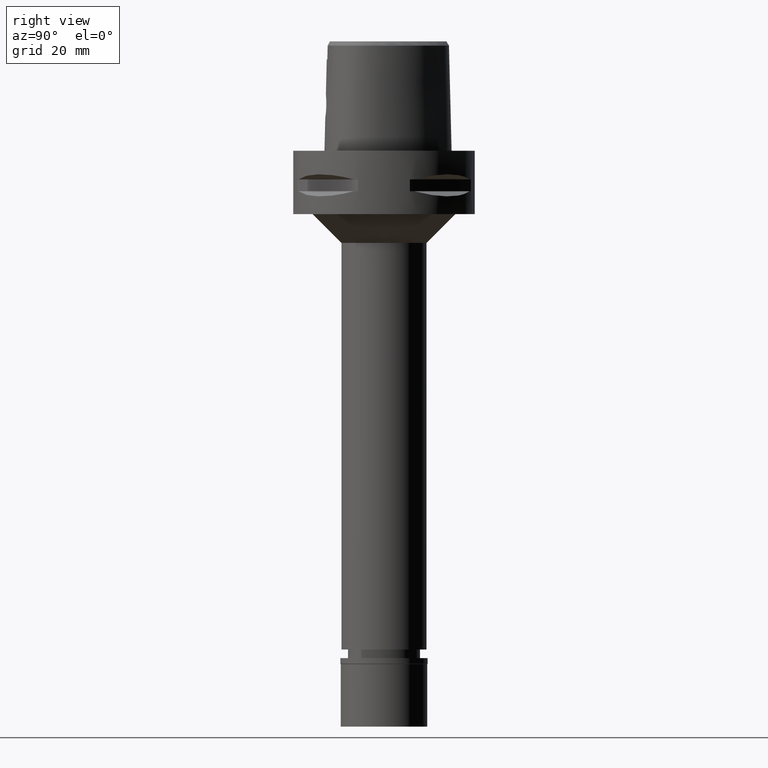
[diagram: clean part render]
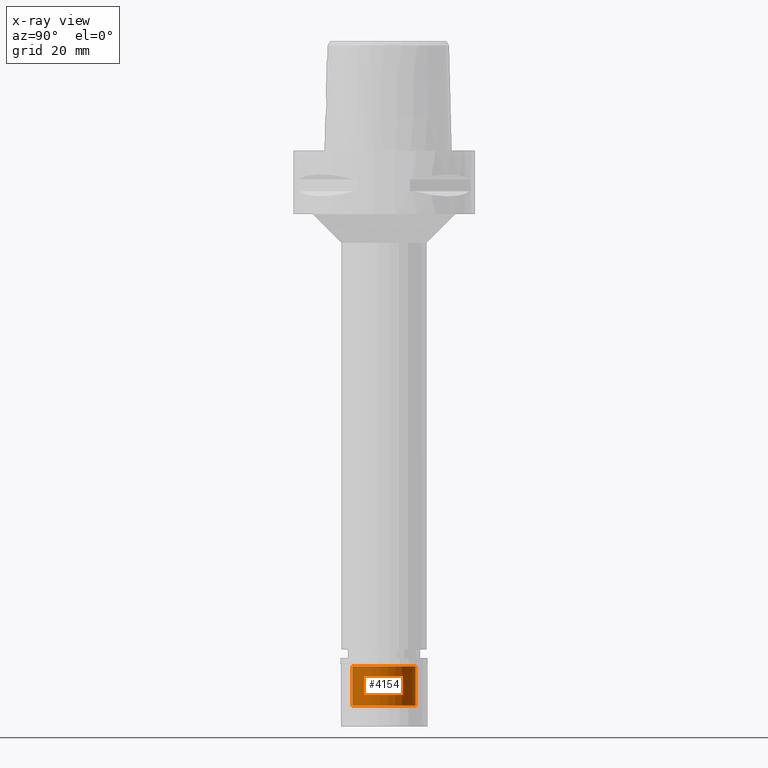
[diagram: x-ray — body ghosted, one internal face saturated and labeled with its STEP entity id]
A machine part, right view, then the same camera in x-ray: the body is ghosted and one INTERNAL B-rep face — a face not visible from any outside direction — is saturated and labeled: STEP entity #4154.
In plain terms, the highlighted cylindrical surface (edge-blend (fillet) strip) has radius 11 mm, axis along (0, 0, -1).
Its self-contained STEP definition (entity closure, byte-faithful):
#62 = DIRECTION ( 'NONE',  ( 0.0000000000000000000, 0.0000000000000000000, -1.000000000000000000 ) ) ;
#270 = CARTESIAN_POINT ( 'NONE',  ( 0.0000000000000000000, -11.00000000000000000, -16.50000000000000000 ) ) ;
#371 = EDGE_LOOP ( 'NONE', ( #3478, #777, #2441, #2598 ) ) ;
#407 = CIRCLE ( 'NONE', #2302, 11.00000000000000000 ) ;
#442 = CARTESIAN_POINT ( 'NONE',  ( 0.0000000000000000000, 0.0000000000000000000, -16.50000000000000000 ) ) ;
#490 = CARTESIAN_POINT ( 'NONE',  ( 0.0000000000000000000, 11.00000000000000000, -16.50000000000000000 ) ) ;
#525 = EDGE_CURVE ( 'NONE', #4177, #1474, #1029, .T. ) ;
#718 = DIRECTION ( 'NONE',  ( 0.0000000000000000000, 0.0000000000000000000, -1.000000000000000000 ) ) ;
#777 = ORIENTED_EDGE ( 'NONE', *, *, #3321, .T. ) ;
#1029 = CIRCLE ( 'NONE', #3785, 11.00000000000000000 ) ;
#1074 = DIRECTION ( 'NONE',  ( 0.0000000000000000000, 1.000000000000000000, 0.0000000000000000000 ) ) ;
#1333 = LINE ( 'NONE', #270, #4522 ) ;
#1474 = VERTEX_POINT ( 'NONE', #4493 ) ;
#1753 = CARTESIAN_POINT ( 'NONE',  ( 0.0000000000000000000, -11.00000000000000000, -2.899999999999999911 ) ) ;
#1755 = VECTOR ( 'NONE', #3955, 1000.000000000000000 ) ;
#1773 = DIRECTION ( 'NONE',  ( 0.0000000000000000000, 0.0000000000000000000, 1.000000000000000000 ) ) ;
#1914 = AXIS2_PLACEMENT_3D ( 'NONE', #4484, #718, #4460 ) ;
#2299 = VERTEX_POINT ( 'NONE', #2876 ) ;
#2302 = AXIS2_PLACEMENT_3D ( 'NONE', #442, #62, #1074 ) ;
#2440 = EDGE_CURVE ( 'NONE', #3320, #2299, #407, .T. ) ;
#2441 = ORIENTED_EDGE ( 'NONE', *, *, #525, .T. ) ;
#2598 = ORIENTED_EDGE ( 'NONE', *, *, #4674, .F. ) ;
#2704 = CARTESIAN_POINT ( 'NONE',  ( 0.0000000000000000000, 0.0000000000000000000, -2.899999999999999911 ) ) ;
#2876 = CARTESIAN_POINT ( 'NONE',  ( 0.0000000000000000000, -11.00000000000000000, -16.50000000000000000 ) ) ;
#2956 = CYLINDRICAL_SURFACE ( 'NONE', #1914, 11.00000000000000000 ) ;
#3320 = VERTEX_POINT ( 'NONE', #4727 ) ;
#3321 = EDGE_CURVE ( 'NONE', #2299, #4177, #1333, .T. ) ;
#3478 = ORIENTED_EDGE ( 'NONE', *, *, #2440, .T. ) ;
#3785 = AXIS2_PLACEMENT_3D ( 'NONE', #2704, #4655, #4208 ) ;
#3955 = DIRECTION ( 'NONE',  ( 0.0000000000000000000, 0.0000000000000000000, 1.000000000000000000 ) ) ;
#4090 = FACE_OUTER_BOUND ( 'NONE', #371, .T. ) ;
#4154 = ADVANCED_FACE ( 'NONE', ( #4090 ), #2956, .F. ) ;
#4177 = VERTEX_POINT ( 'NONE', #1753 ) ;
#4208 = DIRECTION ( 'NONE',  ( 0.0000000000000000000, -1.000000000000000000, 0.0000000000000000000 ) ) ;
#4460 = DIRECTION ( 'NONE',  ( 0.0000000000000000000, -1.000000000000000000, 0.0000000000000000000 ) ) ;
#4484 = CARTESIAN_POINT ( 'NONE',  ( 0.0000000000000000000, 0.0000000000000000000, 0.0000000000000000000 ) ) ;
#4493 = CARTESIAN_POINT ( 'NONE',  ( 0.0000000000000000000, 11.00000000000000000, -2.899999999999999911 ) ) ;
#4522 = VECTOR ( 'NONE', #1773, 1000.000000000000000 ) ;
#4655 = DIRECTION ( 'NONE',  ( 0.0000000000000000000, 0.0000000000000000000, 1.000000000000000000 ) ) ;
#4656 = LINE ( 'NONE', #490, #1755 ) ;
#4674 = EDGE_CURVE ( 'NONE', #3320, #1474, #4656, .T. ) ;
#4727 = CARTESIAN_POINT ( 'NONE',  ( 0.0000000000000000000, 11.00000000000000000, -16.50000000000000000 ) ) ;